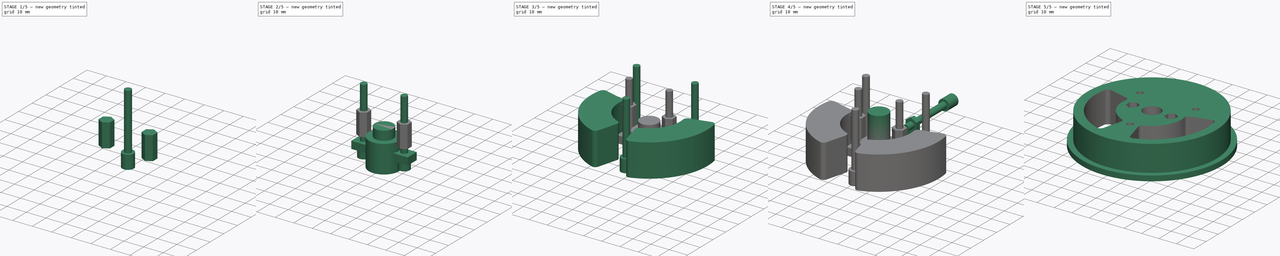
[diagram: build sequence overview — one tinted view per stage of 5, left to right]
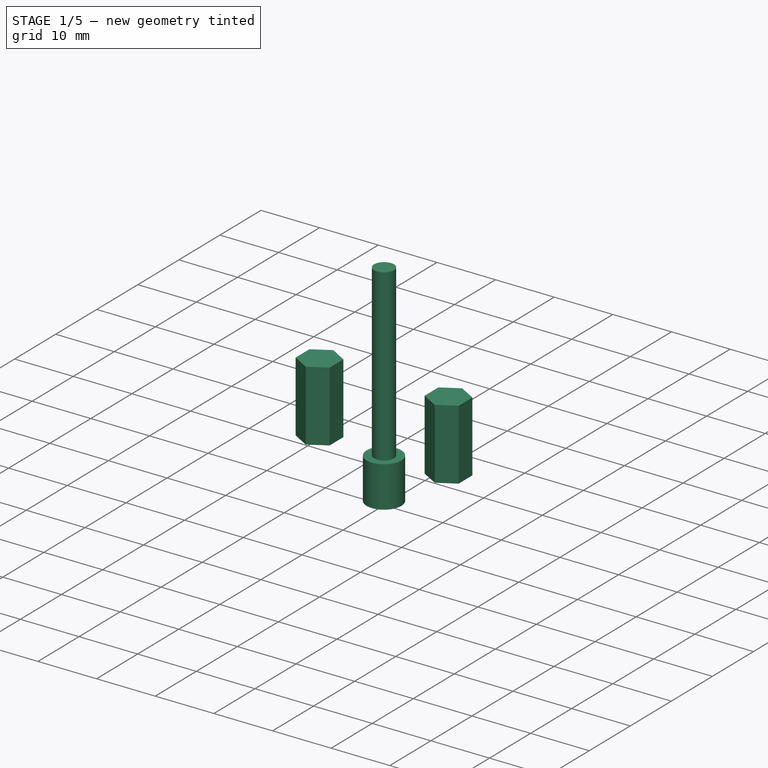
[diagram: stage 1 of 5 — iso view after this stage's code; geometry added in this stage tinted green]
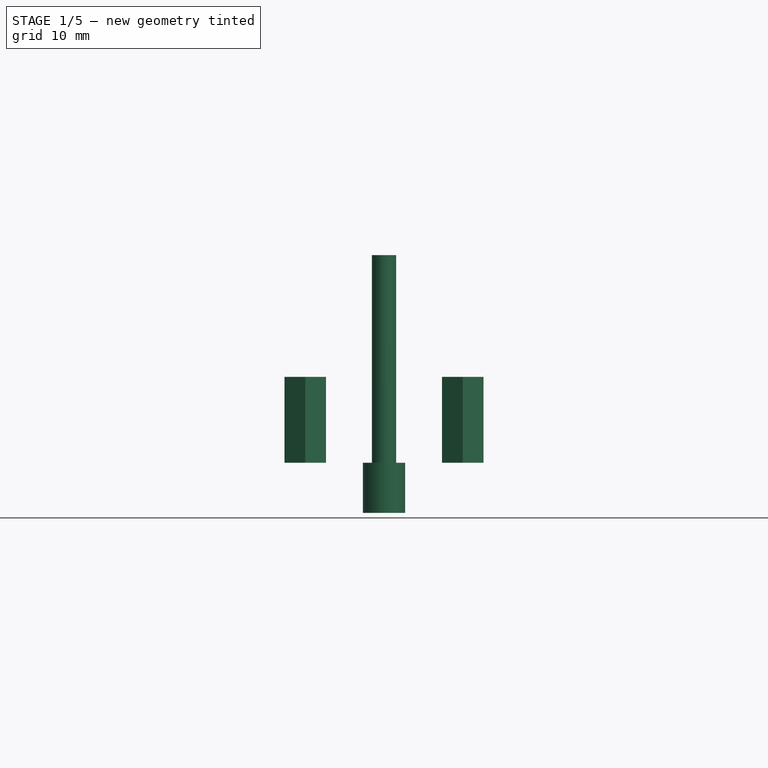
[diagram: stage 1 of 5 — front view after this stage's code; geometry added in this stage tinted green]
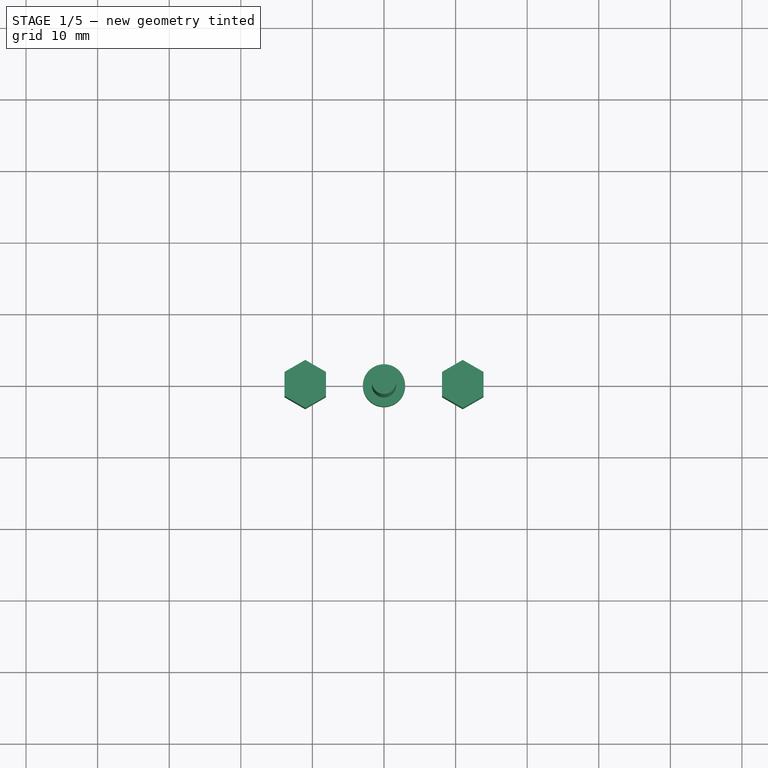
[diagram: stage 1 of 5 — top view after this stage's code; geometry added in this stage tinted green]
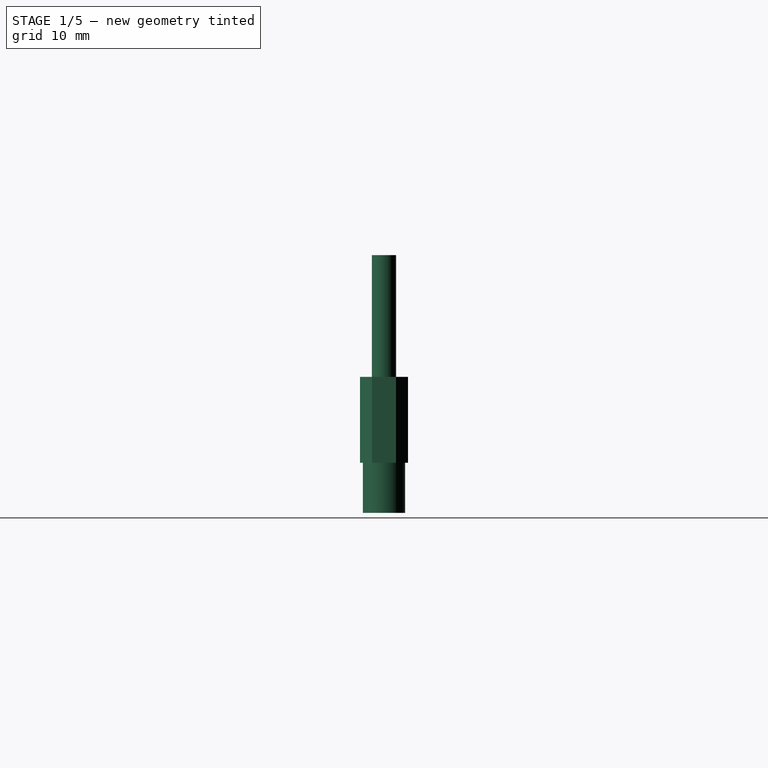
[diagram: stage 1 of 5 — right view after this stage's code; geometry added in this stage tinted green]
FCSTD DOCUMENT  (FreeCAD 0.16R6458 (Git))
Label: Art3Pulley
License: All rights reserved
LicenseURL: http://en.wikipedia.org/wiki/All_rights_reserved
objects: Part::FeaturePython×11, Part::Cylinder×5, Part::MultiFuse×5, Sketcher::SketchObject×4, PartDesign::Pad×3, Part::Cut×3, Part::Prism×1, Part::Box×1, PartDesign::Revolution×1, App::DocumentObjectGroup×1
note: 38 computed .brp shape members not serialized (recipe doc carries the construction recipe); baked Part::Feature solids carry a one-line shape summary decoded from their .brp

FEATURE [Part::Cylinder] Cylinder  label="M3BoltHead"
  Angle = 360
  Height = 7
  Radius = 2.95
FEATURE [Part::Cylinder] Cylinder001  label="M3BoltBody"
  Angle = 360
  Height = 30
  Placement = pos=(0,0,6) rot=(0,0,1;0rad)
  Radius = 1.7
FEATURE [Part::MultiFuse] Fusion  label="M3Bolt"
  Shapes = -> [Cylinder001,Cylinder]
FEATURE [Part::Prism] Prism  label="M3Nut"
  Circumradius = 3.35
  Height = 12
  Polygon = 6
FEATURE [Part::FeaturePython] Clone139  label="Clone of M3Nut005"  # Draft clone (typed FeaturePython)
  Objects = -> [Prism]
  Placement = pos=(11,0,7) rot=(0,0,1;0.523599rad)
  Scale = (1,1,1)
FEATURE [Part::FeaturePython] Clone140  label="Clone of M3Nut006"  # Draft clone (typed FeaturePython)
  Objects = -> [Prism]
  Placement = pos=(-11,0,7) rot=(0,0,1;0.523599rad)
  Scale = (1,1,1)
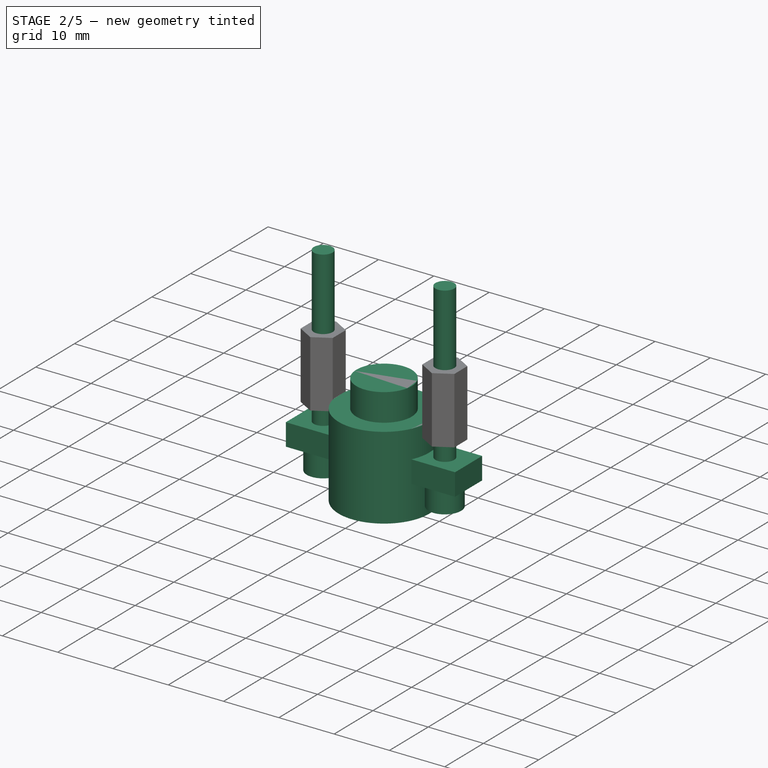
[diagram: stage 2 of 5 — iso view after this stage's code; geometry added in this stage tinted green]
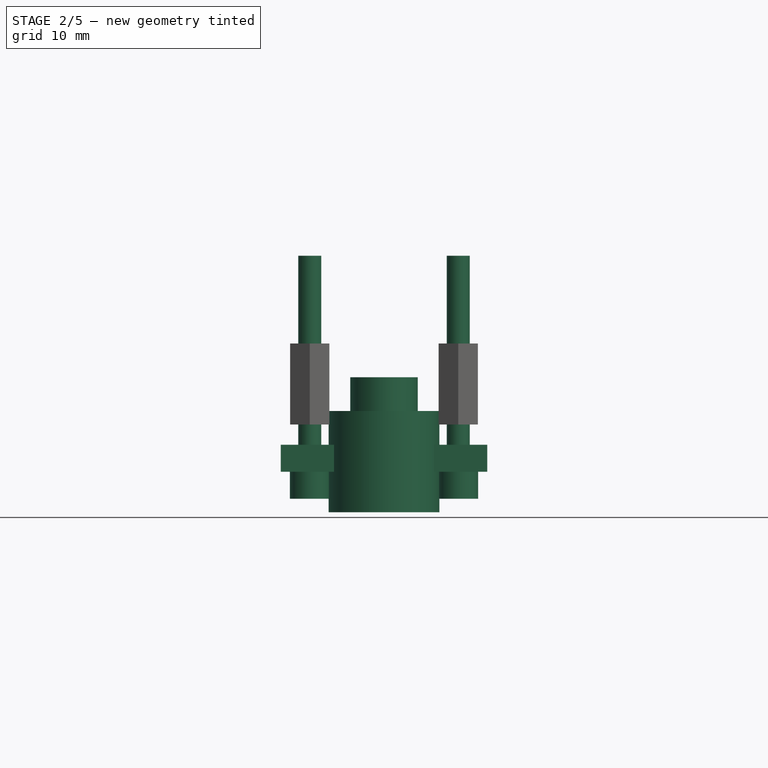
[diagram: stage 2 of 5 — front view after this stage's code; geometry added in this stage tinted green]
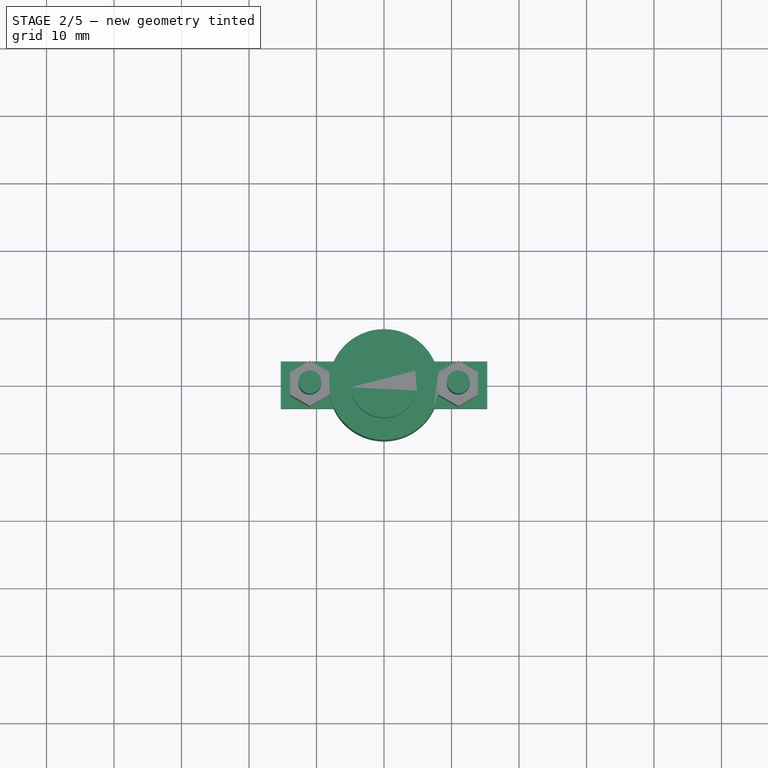
[diagram: stage 2 of 5 — top view after this stage's code; geometry added in this stage tinted green]
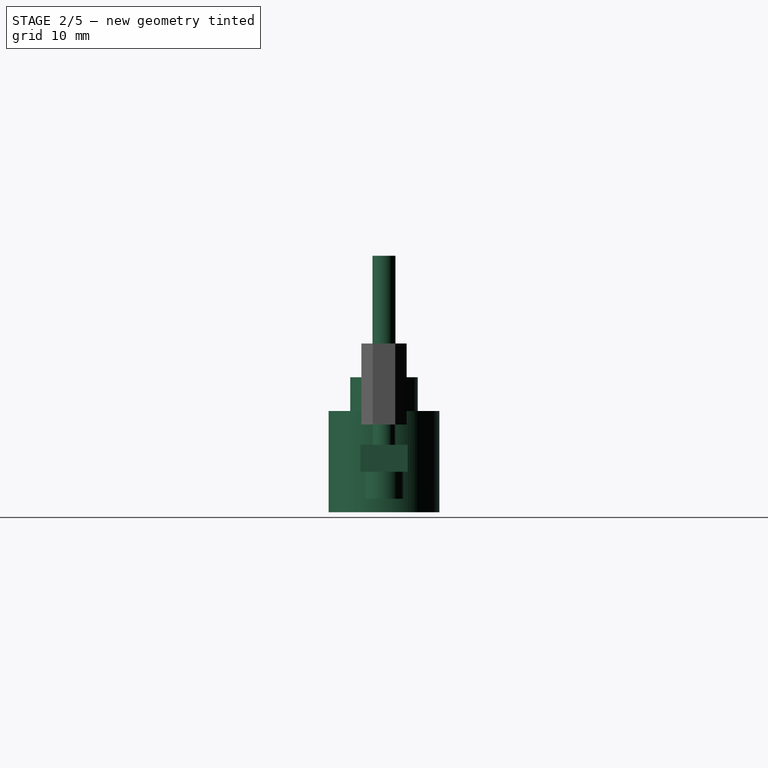
[diagram: stage 2 of 5 — right view after this stage's code; geometry added in this stage tinted green]
FEATURE [Part::Cylinder] Cylinder1003  label="Bearing625ZZMaster"
  Angle = 360
  Height = 15
  Radius = 8.2
FEATURE [Part::FeaturePython] Clone136  label="Clone of Bearing625ZZMaster"  # Draft clone (typed FeaturePython)
  Objects = -> [Cylinder1003]
  Placement = pos=(0,0,-6) rot=(0,0,1;0rad)
  Scale = (1,1,1)
FEATURE [Part::Cylinder] Cylinder1015  label="Cylinder021"
  Angle = 360
  Height = 10
  Placement = pos=(0,0,4) rot=(0,0,1;0rad)
  Radius = 5
FEATURE [Part::Box] Box251  label="Cube015"
  Height = 4
  Length = 30.6
  Placement = pos=(-15.3,-3.5,0) rot=(0,0,1;0rad)
  Width = 7
FEATURE [Part::FeaturePython] Clone137  label="Clone of M3Bolt039"  # Draft clone (typed FeaturePython)
  Objects = -> [Fusion]
  Placement = pos=(11,0,-4) rot=(0,0,1;0rad)
  Scale = (1,1,1)
FEATURE [Part::FeaturePython] Clone138  label="Clone of M3Bolt040"  # Draft clone (typed FeaturePython)
  Objects = -> [Fusion]
  Placement = pos=(-11,0,-4) rot=(0,0,1;0rad)
  Scale = (1,1,1)
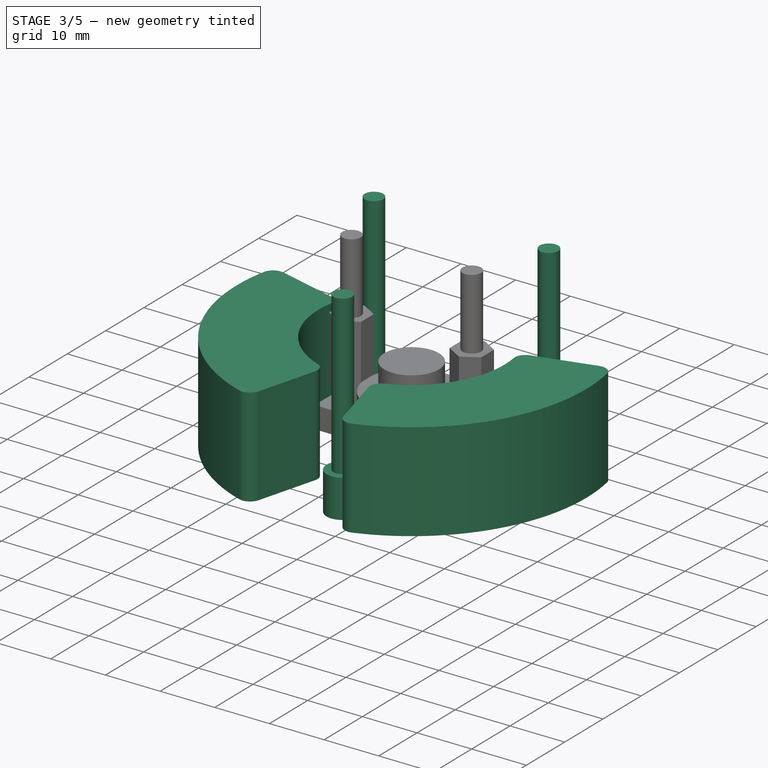
[diagram: stage 3 of 5 — iso view after this stage's code; geometry added in this stage tinted green]
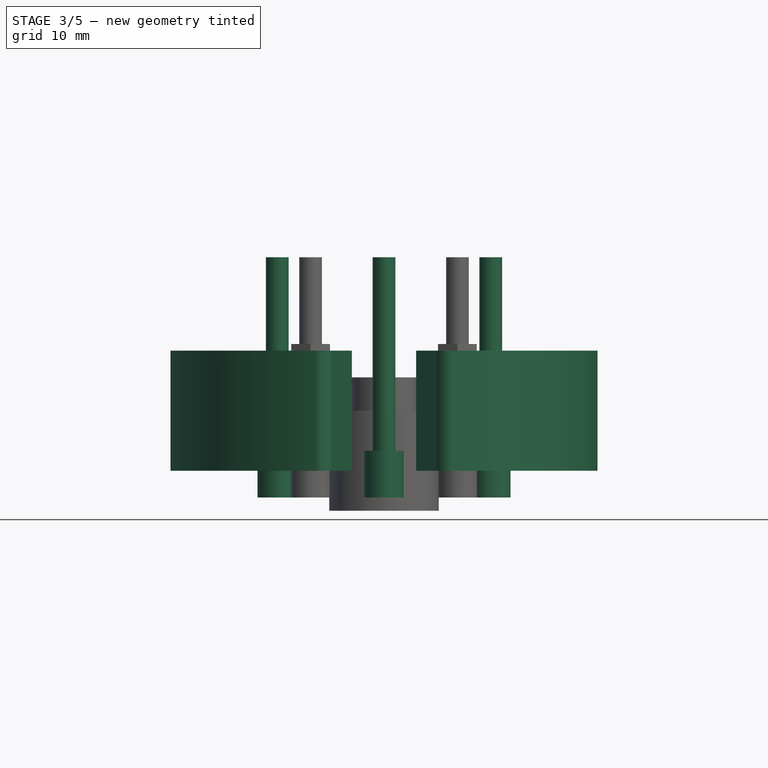
[diagram: stage 3 of 5 — front view after this stage's code; geometry added in this stage tinted green]
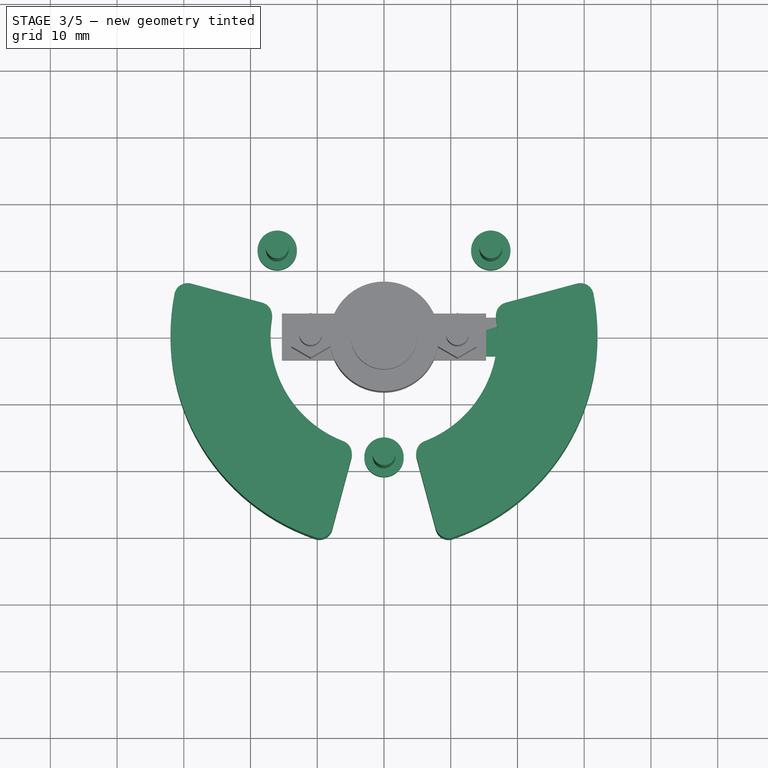
[diagram: stage 3 of 5 — top view after this stage's code; geometry added in this stage tinted green]
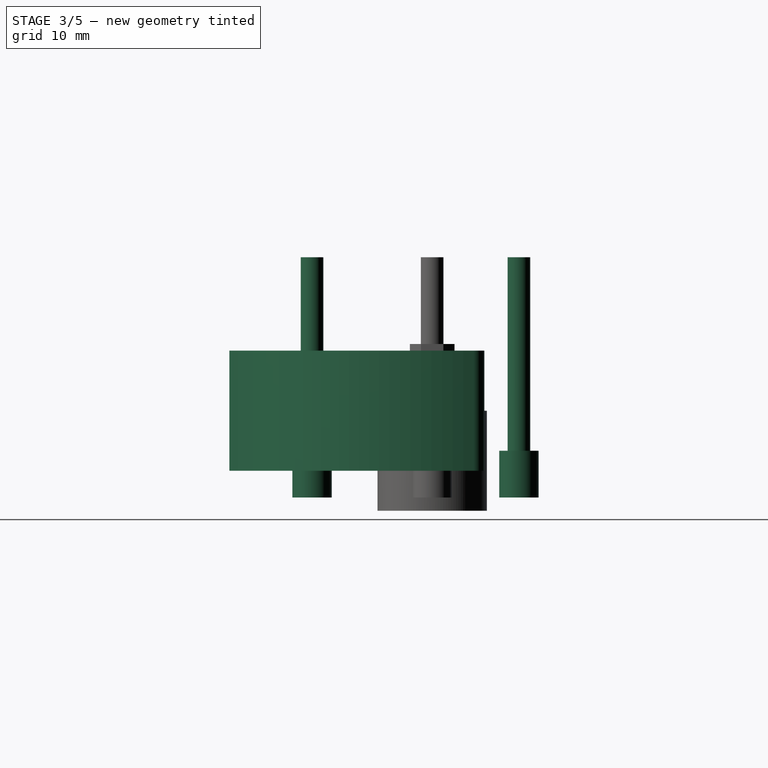
[diagram: stage 3 of 5 — right view after this stage's code; geometry added in this stage tinted green]
FEATURE [Sketcher::SketchObject] Sketch003  label="M3NutHousingSketch"
  sketch-geometry (5):
    g0: LineSegment StartX=0 StartY=0 StartZ=0 EndX=1.67432 EndY=2.9 EndZ=0
    g1: LineSegment StartX=1.67432 StartY=2.9 StartZ=0 EndX=21.6743 EndY=2.9 EndZ=0
    g2: LineSegment StartX=21.6743 StartY=2.9 StartZ=0 EndX=21.6743 EndY=-2.9 EndZ=0
    g3: LineSegment StartX=21.6743 StartY=-2.9 StartZ=0 EndX=1.67432 EndY=-2.9 EndZ=0
    g4: LineSegment StartX=1.67432 StartY=-2.9 StartZ=0 EndX=0 EndY=0 EndZ=0
  constraints (14):
    c: Coincident(g-1,g0)
    c: Coincident(g0,g1)
    c: Horizontal(g1)
    c: Coincident(g1,g2)
    c: Vertical(g2)
    c: Coincident(g2,g3)
    c: Horizontal(g3)
    c: Coincident(g3,g4)
    c: Coincident(g4,g0)
    c: Equal(g3,g1)
    c: Equal(g4,g0)
    c: DistanceY(g2) = -5.8
    c: Angle(g-1,g0) = 1.0472
    c: DistanceX(g3) = -20
FEATURE [PartDesign::Pad] Pad002  label="M3NutHousing"
  Length = 2.7
  Length2 = 100
  Sketch = -> Sketch003
  Type = 0
FEATURE [Part::MultiFuse] Fusion062  label="Bearing625zzHoles"
  Shapes = -> [Clone140,Clone139,Box251,Clone137,Clone138,Cylinder1015,Clone136]
FEATURE [Part::FeaturePython] Clone222  label="Clone of M3Bolt076"  # Draft clone (typed FeaturePython)
  Objects = -> [Fusion]
  Placement = pos=(0,-18,-4) rot=(0,0,1;0rad)
  Scale = (1,1,1)
FEATURE [Sketcher::SketchObject] Sketch044
  sketch-geometry (20):
    g0: ArcOfCircle CenterX=0 CenterY=0 CenterZ=0 NormalX=0 NormalY=0 NormalZ=1 Radius=32 StartAngle=2.94651 EndAngle=4.38387
    g1: ArcOfCircle CenterX=0 CenterY=0 CenterZ=0 NormalX=0 NormalY=0 NormalZ=1 Radius=17 StartAngle=2.98525 EndAngle=4.34513
    g2: LineSegment StartX=-18.2506 StartY=4.89021 StartZ=0 EndX=-28.9133 EndY=7.74726 EndZ=0
    g3: LineSegment StartX=-4.89024 StartY=-18.2506 StartZ=0 EndX=-7.7473 EndY=-28.9133 EndZ=0
    g4: LineSegment StartX=4.89024 StartY=-18.2506 StartZ=0 EndX=7.7473 EndY=-28.9133 EndZ=0
    g5: LineSegment StartX=18.2506 StartY=4.89024 StartZ=0 EndX=28.9133 EndY=7.7473 EndZ=0
    g6: ArcOfCircle CenterX=0 CenterY=0 CenterZ=0 NormalX=0 NormalY=0 NormalZ=1 Radius=17 StartAngle=5.07965 EndAngle=6.43953
    g7: ArcOfCircle CenterX=0 CenterY=0 CenterZ=0 NormalX=0 NormalY=0 NormalZ=1 Radius=32 StartAngle=5.0409 EndAngle=6.47827
    g8: ArcOfCircle CenterX=-9.67915 CenterY=-28.3957 CenterZ=0 NormalX=0 NormalY=0 NormalZ=1 Radius=2 StartAngle=4.38387 EndAngle=6.02139
    g9: ArcOfCircle CenterX=-29.431 CenterY=5.81541 CenterZ=0 NormalX=0 NormalY=0 NormalZ=1 Radius=2 StartAngle=1.309 EndAngle=2.94651
    g10: ArcOfCircle CenterX=-18.7683 CenterY=2.95836 CenterZ=0 NormalX=0 NormalY=0 NormalZ=1 Radius=2 StartAngle=6.12685 EndAngle=7.59218
    g11: ArcOfCircle CenterX=-6.82209 CenterY=-17.733 CenterZ=0 NormalX=0 NormalY=0 NormalZ=1 Radius=2 StartAngle=6.02139 EndAngle=7.48672
    g12: LineSegment [constr] StartX=-18.2506 StartY=4.89021 StartZ=0 EndX=0 EndY=0 EndZ=0
    g13: LineSegment [constr] StartX=-4.89024 StartY=-18.2506 StartZ=0 EndX=0 EndY=0 EndZ=0
    g14: ArcOfCircle CenterX=18.7683 CenterY=2.95839 CenterZ=0 NormalX=0 NormalY=0 NormalZ=1 Radius=2 StartAngle=1.8326 EndAngle=3.29793
    g15: ArcOfCircle CenterX=29.4309 CenterY=5.81545 CenterZ=0 NormalX=0 NormalY=0 NormalZ=1 Radius=2 StartAngle=0.195084 EndAngle=1.83259
    g16: ArcOfCircle CenterX=6.82209 CenterY=-17.733 CenterZ=0 NormalX=0 NormalY=0 NormalZ=1 Radius=2 StartAngle=1.93805 EndAngle=3.40339
    g17: ArcOfCircle CenterX=9.67915 CenterY=-28.3957 CenterZ=0 NormalX=0 NormalY=0 NormalZ=1 Radius=2 StartAngle=3.40339 EndAngle=5.0409
    g18: LineSegment [constr] StartX=4.89024 StartY=-18.2506 StartZ=0 EndX=0 EndY=0 EndZ=0
    g19: LineSegment [constr] StartX=18.2506 StartY=4.89024 StartZ=0 EndX=0 EndY=0 EndZ=0
  constraints (66):
    c: Coincident(g0,g-1)
    c: Coincident(g1,g-1)
    c: Radius(g0) = 32
    c: Radius(g1) = 17
    c: PointOnObject(g-1,g4)
    c: Angle(g3,g-1) = 1.8326
    c: Angle(g-1,g2) = 2.87979
    c: Angle(g-1,g5) = 0.261799
    c: Angle(g4,g-1) = 1.309
    c: Equal(g1,g6)
    c: Coincident(g1,g6)
    c: Equal(g0,g7)
    c: Coincident(g0,g7)
    c: Coincident(g8,g0)
    c: Coincident(g8,g3)
    c: Coincident(g9,g2)
    c: Coincident(g9,g0)
    c: Coincident(g10,g2)
    c: Coincident(g10,g1)
    c: Coincident(g11,g1)
    c: Coincident(g11,g3)
    c: Tangent(g0,g8)
    c: Tangent(g8,g3)
    c: Tangent(g3,g11)
    c: Tangent(g1,g11)
    c: Tangent(g0,g9)
    c: Tangent(g2,g9)
    c: Tangent(g2,g10)
    c: Tangent(g1,g10)
    c: Equal(g9,g10)
    c: Equal(g10,g11)
    c: Equal(g11,g8)
    c: Radius(g9) = 2
    c: Coincident(g12,g2)
    c: Coincident(g12,g-1)
    c: Tangent(g12,g10)
    c: Coincident(g13,g3)
    c: Coincident(g13,g-1)
    c: Tangent(g3,g13)
    c: Coincident(g14,g5)
    c: Coincident(g14,g6)
    c: Coincident(g15,g7)
    c: Coincident(g16,g4)
    c: Coincident(g17,g4)
    c: Coincident(g17,g7)
    c: Tangent(g16,g4)
    c: Tangent(g16,g6)
    c: Tangent(g6,g14)
    c: Tangent(g5,g14)
    c: Tangent(g7,g15)
    c: Coincident(g15,g5)
    c: Tangent(g5,g15)
    c: Tangent(g17,g7)
    c: Tangent(g4,g17)
    c: Equal(g16,g17)
    c: Equal(g17,g14)
    c: Equal(g14,g15)
    c: Equal(g15,g9)
    c: Coincident(g18,g4)
    c: Coincident(g18,g-1)
    c: Tangent(g18,g16)
    c: Coincident(g19,g5)
    c: Coincident(g19,g-1)
    c: Tangent(g19,g14)
    c: Tangent(g18,g4)
    c: Coincident(g16,g6)
FEATURE [PartDesign::Pad] Pad032
  Length = 18
  Length2 = 100
  Sketch = -> Sketch044
  Type = 0
FEATURE [Part::FeaturePython] Clone449  label="Clone of M3Bolt134"  # Draft clone (typed FeaturePython)
  Objects = -> [Fusion]
  Placement = pos=(16,13,-4) rot=(0,0,1;0rad)
  Scale = (1,1,1)
FEATURE [Part::FeaturePython] Clone450  label="Clone of M3Bolt135"  # Draft clone (typed FeaturePython)
  Objects = -> [Fusion]
  Placement = pos=(-16,13,-4) rot=(0,0,1;0rad)
  Scale = (1,1,1)
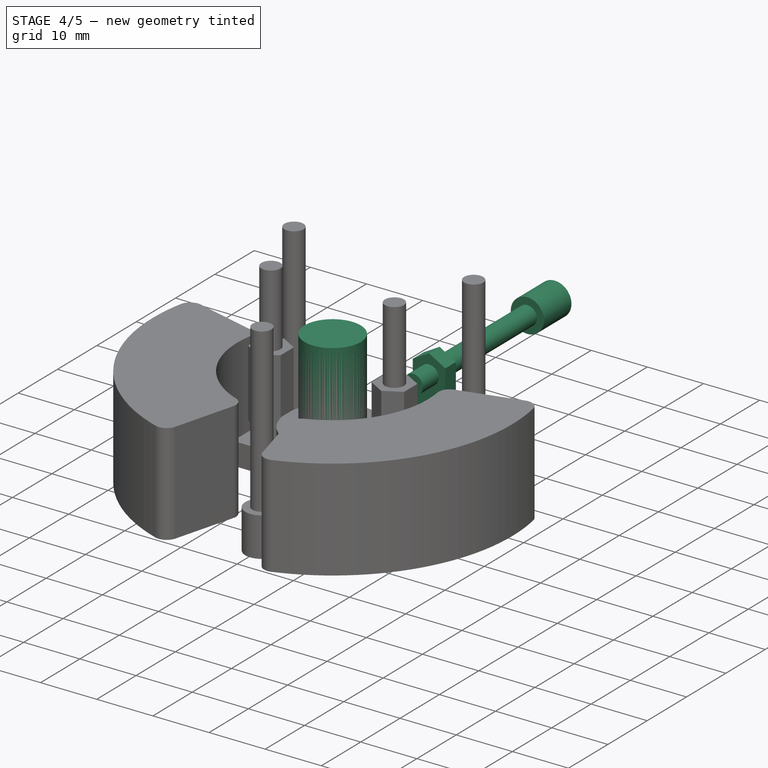
[diagram: stage 4 of 5 — iso view after this stage's code; geometry added in this stage tinted green]
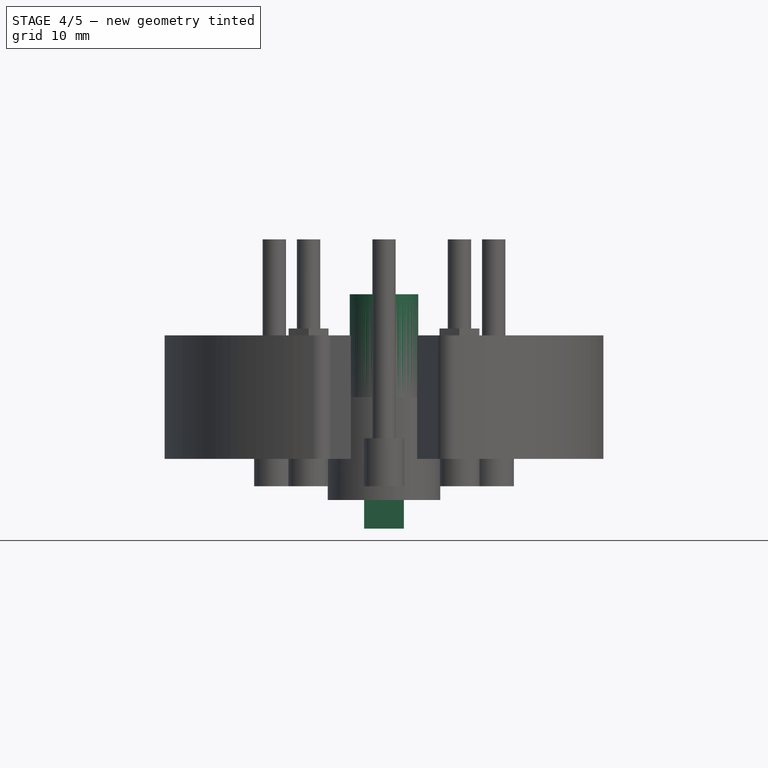
[diagram: stage 4 of 5 — front view after this stage's code; geometry added in this stage tinted green]
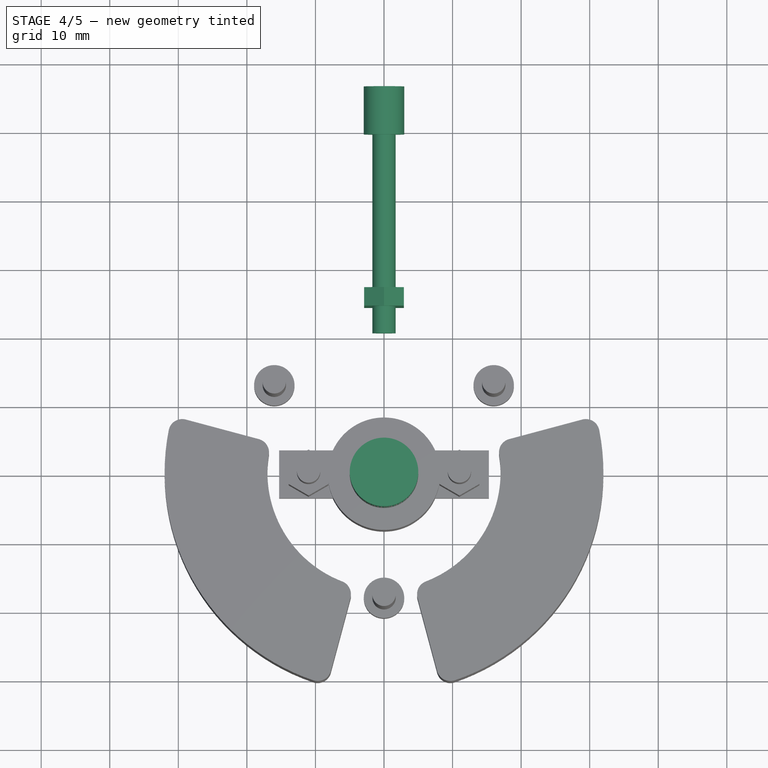
[diagram: stage 4 of 5 — top view after this stage's code; geometry added in this stage tinted green]
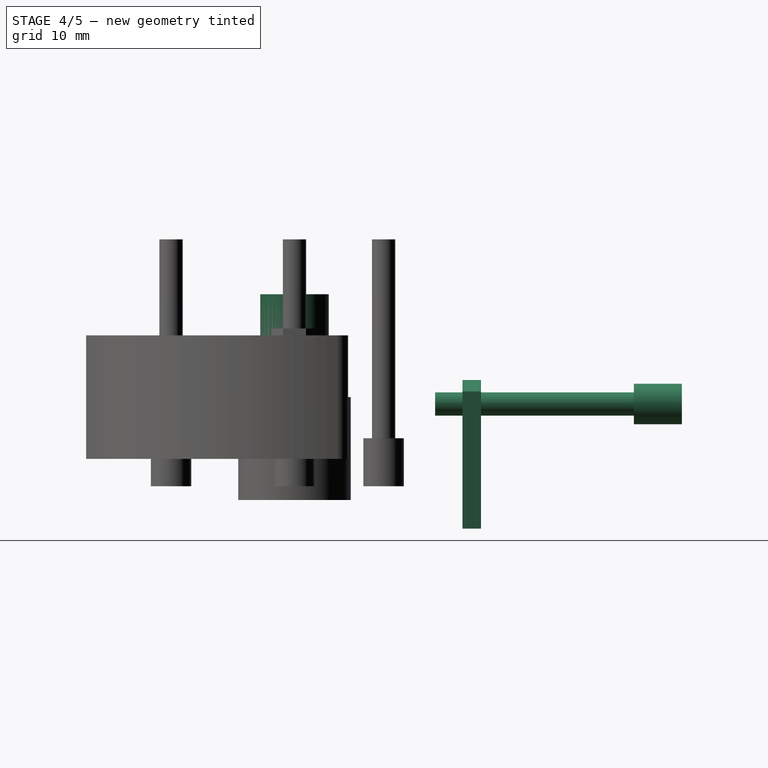
[diagram: stage 4 of 5 — right view after this stage's code; geometry added in this stage tinted green]
FEATURE [Part::FeaturePython] Clone219  label="Clone of M3Bolt075"  # Draft clone (typed FeaturePython)
  Objects = -> [Fusion]
  Placement = pos=(0,56.5,8) rot=(0.57735,0.57735,-0.57735;2.0944rad)
  Scale = (1,1,1)
FEATURE [Part::FeaturePython] Clone220  label="Clone of M3NutHousing021"  # Draft clone (typed FeaturePython)
  Objects = -> [Pad002]
  Placement = pos=(0,24.5,11.5) rot=(0.57735,-0.57735,-0.57735;4.18879rad)
  Scale = (1,1,1)
FEATURE [Part::FeaturePython] Clone221  label="Clone of Bearing622zzHoles003"  # Draft clone (typed FeaturePython)
  Objects = -> [Fusion062]
  Scale = (1,1,1)
FEATURE [Part::Cylinder] Cylinder1020  label="Cylinder1067"
  Angle = 360
  Height = 10
  Placement = pos=(0,0,14) rot=(0,0,1;0rad)
  Radius = 5
FEATURE [Part::MultiFuse] Fusion083
  Shapes = -> [Cylinder1020,Clone221]
FEATURE [Part::MultiFuse] Fusion171
  Shapes = -> [Clone450,Clone449,Clone222,Pad032]
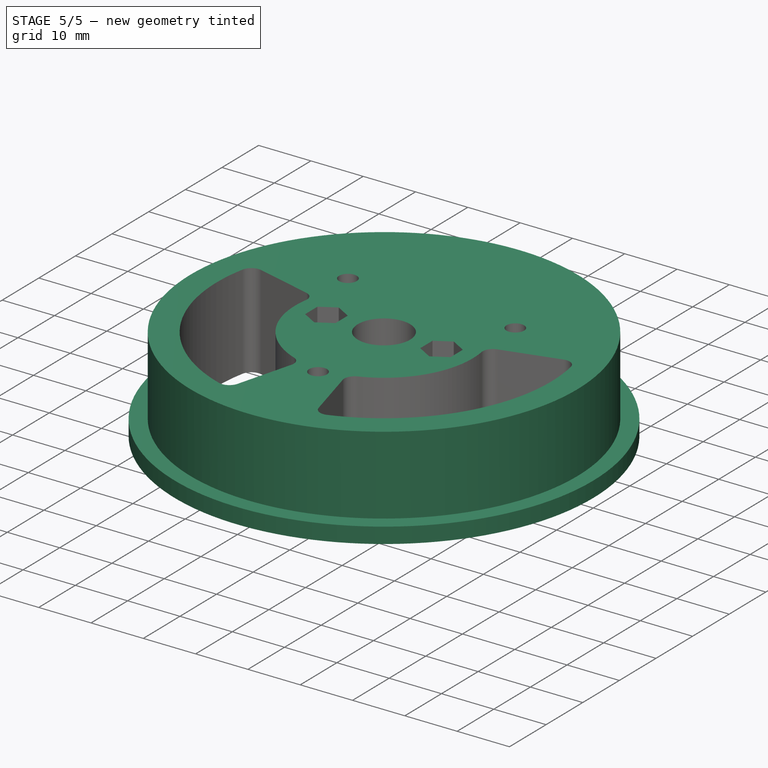
[diagram: stage 5 of 5 — iso view after this stage's code; geometry added in this stage tinted green]
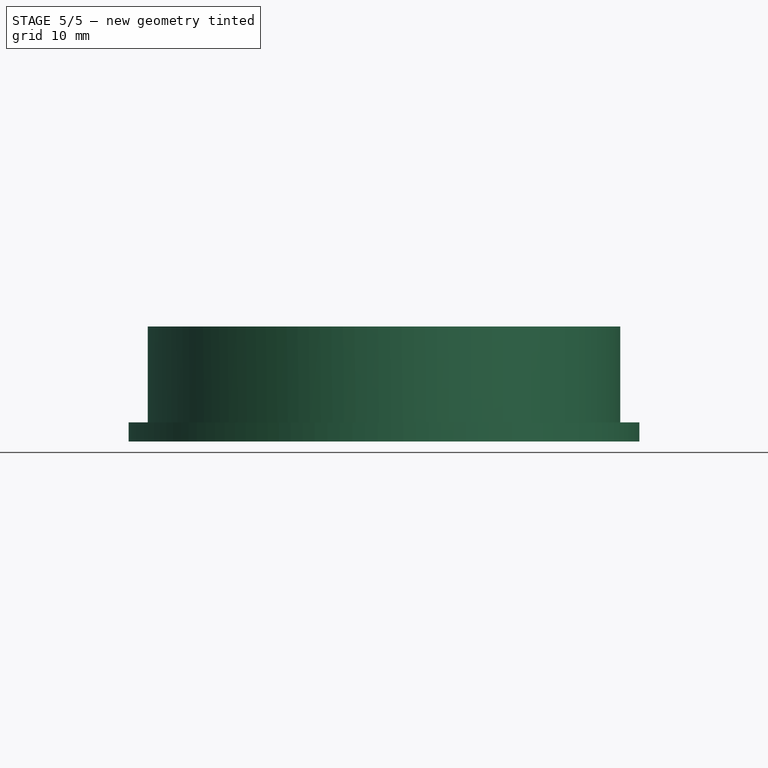
[diagram: stage 5 of 5 — front view after this stage's code; geometry added in this stage tinted green]
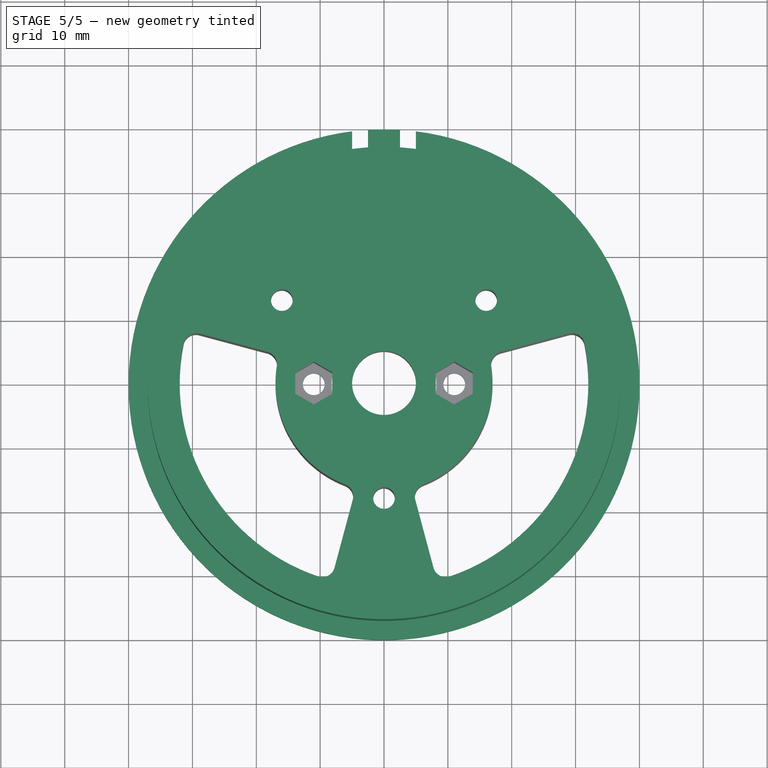
[diagram: stage 5 of 5 — top view after this stage's code; geometry added in this stage tinted green]
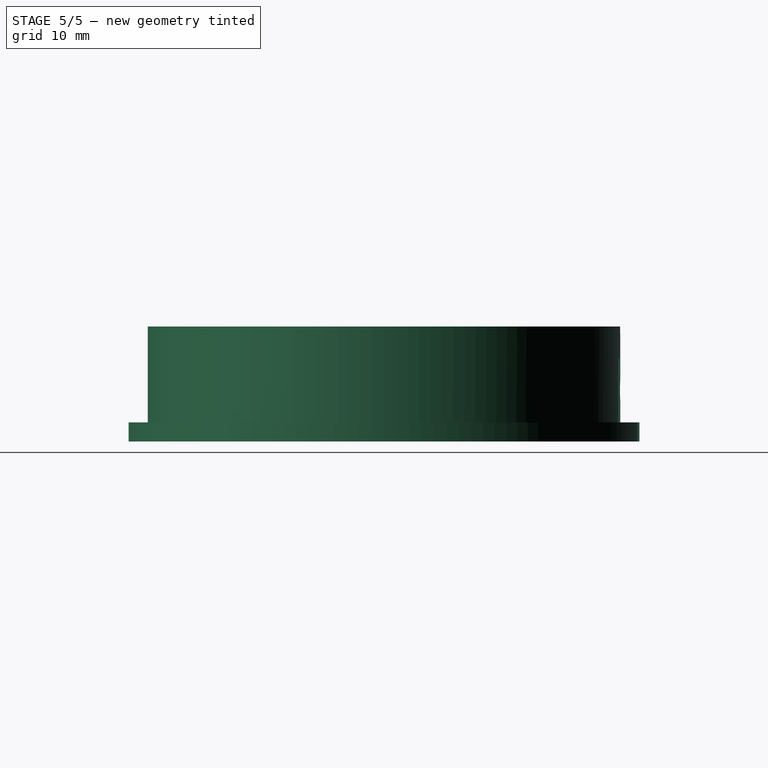
[diagram: stage 5 of 5 — right view after this stage's code; geometry added in this stage tinted green]
FEATURE [Sketcher::SketchObject] Sketch042
  Placement = pos=(0,0,0) rot=(1,0,0;1.5708rad)
  sketch-geometry (6):
    g0: LineSegment StartX=0 StartY=0 StartZ=0 EndX=40 EndY=0 EndZ=0
    g1: LineSegment StartX=40 StartY=0 StartZ=0 EndX=40 EndY=3 EndZ=0
    g2: LineSegment StartX=40 StartY=3 StartZ=0 EndX=37 EndY=3 EndZ=0
    g3: LineSegment StartX=37 StartY=3 StartZ=0 EndX=37 EndY=18 EndZ=0
    g4: LineSegment StartX=37 StartY=18 StartZ=0 EndX=0 EndY=18 EndZ=0
    g5: LineSegment StartX=0 StartY=18 StartZ=0 EndX=0 EndY=0 EndZ=0
  constraints (17):
    c: Coincident(g-1,g0)
    c: Horizontal(g0)
    c: Coincident(g0,g1)
    c: Coincident(g1,g2)
    c: Horizontal(g2)
    c: Coincident(g2,g3)
    c: Vertical(g3)
    c: Coincident(g3,g4)
    c: Horizontal(g4)
    c: Coincident(g4,g5)
    c: Coincident(g5,g0)
    c: Vertical(g5)
    c: Vertical(g1)
    c: DistanceY(g1) = 3
    c: DistanceY(g3) = 15
    c: DistanceX(g0) = 40
    c: DistanceX(g4) = -37
FEATURE [PartDesign::Revolution] Revolution007
  Angle = 360
  Axis = (0,0,1)
  Base = (0,0,0)
  Placement = pos=(0,0,0) rot=(1,0,0;1.5708rad)
  ReferenceAxis = -> Sketch042 [V_Axis]
  Reversed = true
  Sketch = -> Sketch042
FEATURE [Sketcher::SketchObject] Sketch043
  Placement = pos=(0,19.5,0) rot=(0,0,1;0rad)
  sketch-geometry (15):
    g0: LineSegment StartX=-11.5 StartY=0 StartZ=0 EndX=11.5 EndY=0 EndZ=0
    g1: LineSegment StartX=11.5 StartY=0 StartZ=0 EndX=11.5 EndY=3.5 EndZ=0
    g2: LineSegment StartX=11.5 StartY=3.5 StartZ=0 EndX=5 EndY=10 EndZ=0
    g3: LineSegment StartX=5 StartY=10 StartZ=0 EndX=5 EndY=35 EndZ=0
    g4: LineSegment StartX=5 StartY=35 StartZ=0 EndX=2.5 EndY=35 EndZ=0
    g5: LineSegment StartX=2.5 StartY=35 StartZ=0 EndX=2.5 EndY=10 EndZ=0
    g6: LineSegment StartX=2.5 StartY=10 StartZ=0 EndX=9 EndY=3.5 EndZ=0
    g7: LineSegment StartX=9 StartY=3.5 StartZ=0 EndX=-9 EndY=3.5 EndZ=0
    g8: LineSegment StartX=-9 StartY=3.5 StartZ=0 EndX=-2.5 EndY=10 EndZ=0
    g9: LineSegment StartX=-2.5 StartY=10 StartZ=0 EndX=-2.5 EndY=35 EndZ=0
    g10: LineSegment StartX=-2.5 StartY=35 StartZ=0 EndX=-5 EndY=35 EndZ=0
    g11: LineSegment StartX=-5 StartY=35 StartZ=0 EndX=-5 EndY=10 EndZ=0
    g12: LineSegment StartX=-5 StartY=10 StartZ=0 EndX=-11.5 EndY=3.5 EndZ=0
    g13: LineSegment StartX=-11.5 StartY=3.5 StartZ=0 EndX=-11.5 EndY=0 EndZ=0
    g14: LineSegment [constr] StartX=-2.5 StartY=10 StartZ=0 EndX=2.5 EndY=10 EndZ=0
  constraints (45):
    c: PointOnObject(g0,g-1)
    c: PointOnObject(g0,g-1)
    c: Coincident(g0,g1)
    c: Vertical(g1)
    c: Coincident(g1,g2)
    c: Coincident(g2,g3)
    c: Vertical(g3)
    c: Coincident(g3,g4)
    c: Coincident(g4,g5)
    c: Vertical(g5)
    c: Coincident(g5,g6)
    c: Horizontal(g7)
    c: Coincident(g8,g9)
    c: Vertical(g9)
    c: Coincident(g9,g10)
    c: Horizontal(g10)
    c: Coincident(g10,g11)
    c: Vertical(g11)
    c: Coincident(g11,g12)
    c: Coincident(g12,g13)
    c: PointOnObject(g13,g-1)
    c: Vertical(g13)
    c: Coincident(g13,g0)
    c: Equal(g13,g1)
    c: Equal(g11,g9)
    c: Equal(g9,g5)
    c: Equal(g5,g3)
    c: Equal(g10,g4)
    c: DistanceY(g1) = 3.5
    c: DistanceY(g7,g0) = -3.5
    c: Coincident(g6,g7)
    c: Coincident(g7,g8)
    c: Angle(g7,g8) = 0.785398
    c: Angle(g6,g7) = 0.785398
    c: DistanceX(g6,g1) = 2.5
    c: Horizontal(g4)
    c: DistanceX(g4) = -2.5
    c: Coincident(g14,g8)
    c: Coincident(g14,g5)
    c: Horizontal(g14)
    c: DistanceY(g5,g6) = -6.5
    c: DistanceX(g14) = 5
    c: DistanceX(g7,g12) = -2.5
    c: DistanceY(g3) = 25
    c: DistanceX(g-1,g0) = 11.5
FEATURE [PartDesign::Pad] Pad031
  Length = 13
  Length2 = 100
  Placement = pos=(0,19.5,0) rot=(0,0,1;0rad)
  Sketch = -> Sketch043
  Type = 0
FEATURE [Part::MultiFuse] Fusion082
  Shapes = -> [Clone219,Clone220,Pad031]
FEATURE [Part::Cut] Cut067  label="Cut138"
  Base = -> Revolution007
  Tool = -> Fusion082
FEATURE [Part::Cut] Cut068  label="Cut139"
  Base = -> Cut067
  Tool = -> Fusion083
FEATURE [Part::Cut] Cut152  label="Art3Pulley"
  Base = -> Cut068
  Tool = -> Fusion171
FEATURE [App::DocumentObjectGroup] Group  label="Master"
  Group = -> [Fusion,Pad002,Prism,Cylinder1003,Fusion062]
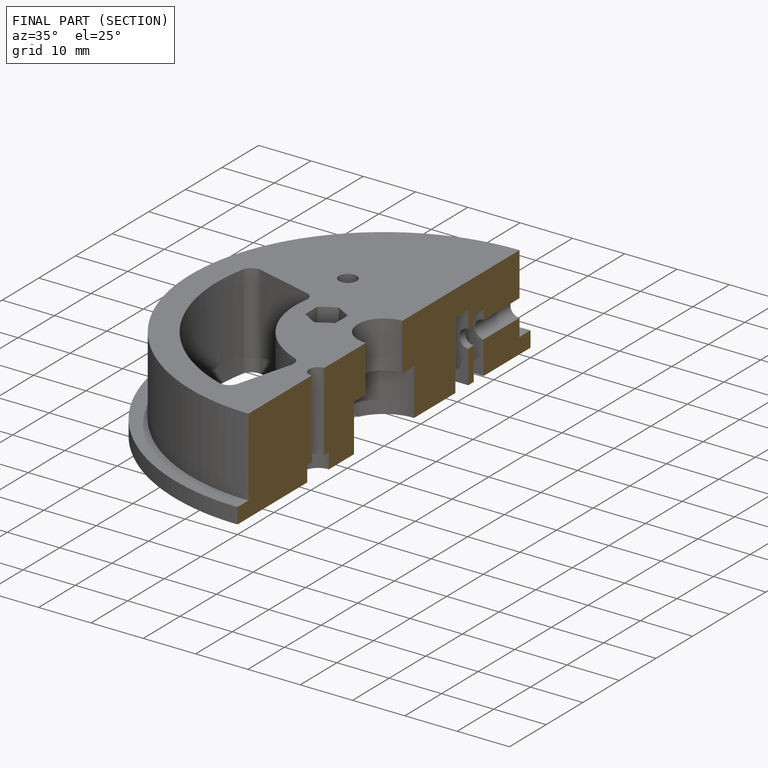
[diagram: finished part — half-section view (interior)]
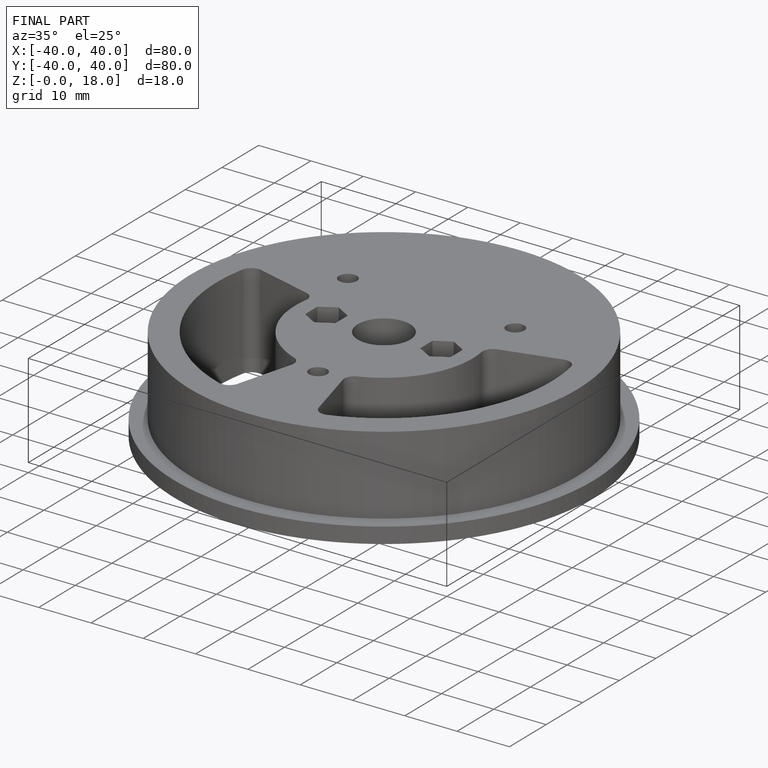
[diagram: finished part — iso view with bounding-box wireframe]
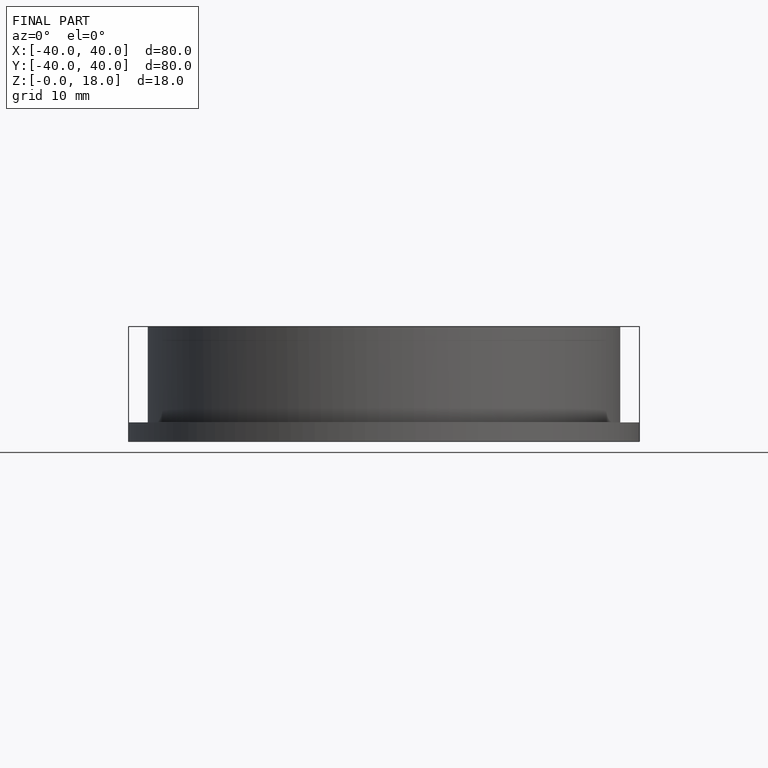
[diagram: finished part — front view with bounding-box wireframe]
